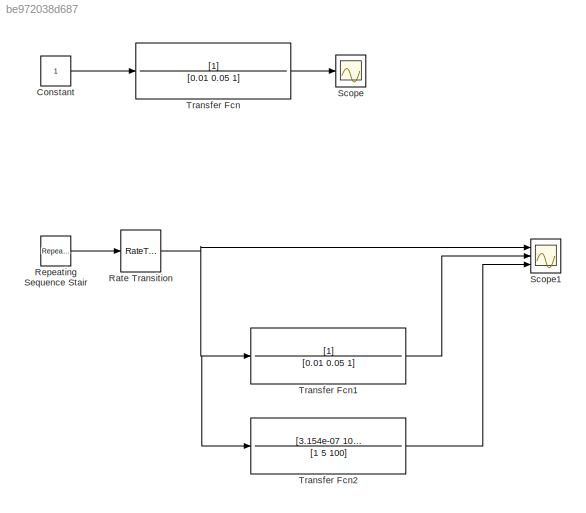
MODEL slx_be972038d687
KIND model
CONFIG AbsTol = auto
CONFIG EnableMultiTasking = off
CONFIG FixedStep = 1e-3
CONFIG MaxStep = auto
CONFIG MinStep = auto
CONFIG RelTol = 1e-3
CONFIG SampleTimeConstraint = Unconstrained
CONFIG SolverName = ode3
CONFIG StartTime = 0.0
CONFIG StopTime = 2
BLOCK [Constant] Constant
BLOCK [RateTransition] Rate Transition
  OutPortSampleTime = 1e-3
BLOCK [Reference] Repeating Sequence Stair  REF=simulink/Sources/Repeating
Sequence
Stair
  Ports = [0, 1]
  SourceBlock = simulink/Sources/Repeating\nSequence\nStair
  SourceProductBaseCode = SL
  SourceType = Repeating Sequence Stair
BLOCK [Scope] Scope
  Floating = off
  NumInputPorts = 1
  Ports = [1]
  ScopeSpecificationString = Simulink.scopes.TimeScopeBlockCfg('CurrentConfiguration', extmgr.ConfigurationSet(extmgr.Configuration('Core','General UI',true),extmgr.Configuration('Core','Source UI',true),extmgr.Configuration('Sources','WiredSimulink',true),extmgr.Configuration('Visuals','Time Domain',true,'SerializedDisplays',{struct('MinYLimReal','-0.18054','MaxYLimReal','1.62488','YLabelReal','','MinYLimMag','0.00000','MaxY...<+1332ch>
BLOCK [Scope] Scope1
  Floating = off
  NumInputPorts = 3
  Ports = [3]
  ScopeSpecificationString = Simulink.scopes.TimeScopeBlockCfg('CurrentConfiguration', extmgr.ConfigurationSet(extmgr.Configuration('Core','General UI',true,'FigureColor',[1 1 1]),extmgr.Configuration('Core','Source UI',true),extmgr.Configuration('Sources','WiredSimulink',true,'DataLoggingVariableName','ScopeData1','DataLogging',true,'DataLoggingSaveFormat','Structure'),extmgr.Configuration('Visuals','Time Domain',true,'Seria...<+2280ch>
BLOCK [TransferFcn] Transfer Fcn
  Denominator = [0.01 0.05 1]
BLOCK [TransferFcn] Transfer Fcn1
  Denominator = [0.01 0.05 1]
BLOCK [TransferFcn] Transfer Fcn2
  Denominator = [1 5 100]
  Numerator = [3.154e-07 100]
LINE Constant:1 -> Transfer Fcn:1
NET Rate Transition:1 -> Scope1:1, Transfer Fcn1:1, Transfer Fcn2:1
LINE Repeating Sequence Stair:1 -> Rate Transition:1
LINE Transfer Fcn1:1 -> Scope1:2
LINE Transfer Fcn2:1 -> Scope1:3
LINE Transfer Fcn:1 -> Scope:1
note: NET lines group one-source signal fan-out (src -> all destinations, sorted); 1:1 wires keep LINE
